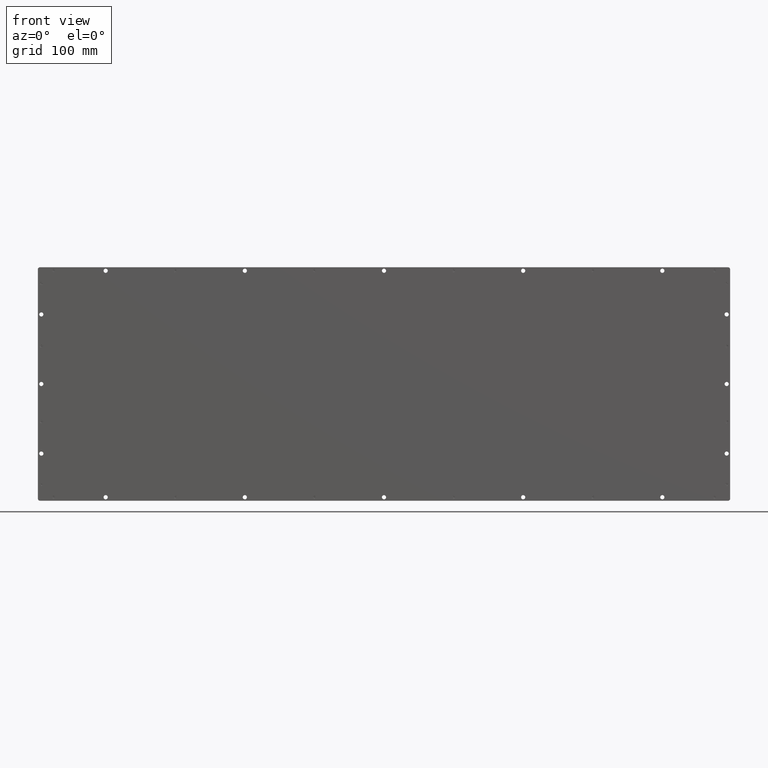
[diagram: clean part render]
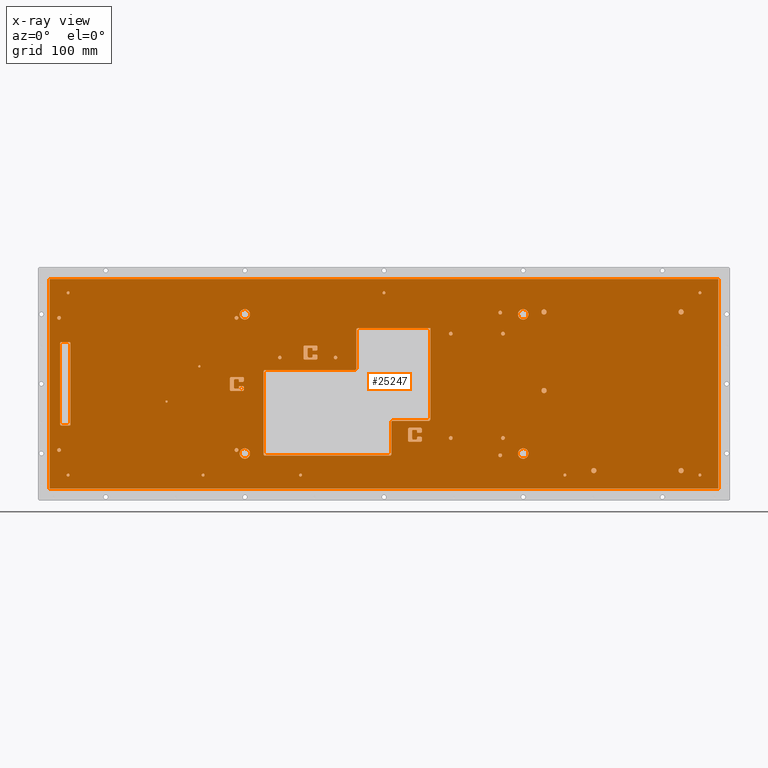
[diagram: x-ray — body ghosted, one internal face saturated and labeled with its STEP entity id]
A machine part, front view, then the same camera in x-ray: the body is ghosted and one INTERNAL B-rep face — a face not visible from any outside direction — is saturated and labeled: STEP entity #25247.
In plain terms, the highlighted planar face has unit normal (0, 1, -0).
Its self-contained STEP definition (entity closure, byte-faithful):
#1954=FACE_BOUND('',#4899,.T.);
#1955=FACE_BOUND('',#4900,.T.);
#1956=FACE_BOUND('',#4901,.T.);
#1957=FACE_BOUND('',#4902,.T.);
#1958=FACE_BOUND('',#4903,.T.);
#1959=FACE_BOUND('',#4904,.T.);
#1960=FACE_BOUND('',#4905,.T.);
#1961=FACE_BOUND('',#4906,.T.);
#1962=FACE_BOUND('',#4907,.T.);
#1963=FACE_BOUND('',#4908,.T.);
#1964=FACE_BOUND('',#4909,.T.);
#1965=FACE_BOUND('',#4910,.T.);
#1966=FACE_BOUND('',#4911,.T.);
#1967=FACE_BOUND('',#4912,.T.);
#1968=FACE_BOUND('',#4913,.T.);
#1969=FACE_BOUND('',#4914,.T.);
#1970=FACE_BOUND('',#4915,.T.);
#1971=FACE_BOUND('',#4916,.T.);
#1972=FACE_BOUND('',#4917,.T.);
#1973=FACE_BOUND('',#4918,.T.);
#1974=FACE_BOUND('',#4919,.T.);
#1975=FACE_BOUND('',#4920,.T.);
#1976=FACE_BOUND('',#4921,.T.);
#1977=FACE_BOUND('',#4922,.T.);
#1978=FACE_BOUND('',#4923,.T.);
#1979=FACE_BOUND('',#4924,.T.);
#1980=FACE_BOUND('',#4925,.T.);
#1981=FACE_BOUND('',#4926,.T.);
#1982=FACE_BOUND('',#4927,.T.);
#1983=FACE_BOUND('',#4928,.T.);
#1984=FACE_BOUND('',#4929,.T.);
#1985=FACE_BOUND('',#4930,.T.);
#1986=FACE_BOUND('',#4931,.T.);
#1987=FACE_BOUND('',#4932,.T.);
#1988=FACE_BOUND('',#4933,.T.);
#1989=FACE_BOUND('',#4934,.T.);
#2431=CIRCLE('',#27029,1.6);
#2432=CIRCLE('',#27030,1.6);
#2433=CIRCLE('',#27031,2.1);
#2434=CIRCLE('',#27032,2.1);
#2435=CIRCLE('',#27033,2.1);
#2436=CIRCLE('',#27034,2.1);
#2437=CIRCLE('',#27035,2.1);
#2438=CIRCLE('',#27036,2.1);
#2439=CIRCLE('',#27037,2.1);
#2440=CIRCLE('',#27038,2.1);
#2441=CIRCLE('',#27039,2.5);
#2442=CIRCLE('',#27040,2.5);
#2443=CIRCLE('',#27041,2.705);
#2444=CIRCLE('',#27042,2.705);
#2445=CIRCLE('',#27043,2.705);
#2446=CIRCLE('',#27044,2.705);
#2447=CIRCLE('',#27045,3.75);
#2448=CIRCLE('',#27046,3.75);
#2449=CIRCLE('',#27047,3.75);
#2450=CIRCLE('',#27048,3.75);
#2451=CIRCLE('',#27049,3.75);
#2452=CIRCLE('',#27050,7.5);
#2453=CIRCLE('',#27051,7.5);
#2454=CIRCLE('',#27052,7.5);
#2455=CIRCLE('',#27053,7.5);
#2456=CIRCLE('',#27054,2.);
#2457=CIRCLE('',#27055,2.);
#2458=CIRCLE('',#27056,2.);
#2459=CIRCLE('',#27057,2.);
#2460=CIRCLE('',#27058,2.);
#2461=CIRCLE('',#27059,2.);
#2462=CIRCLE('',#27060,2.);
#2463=CIRCLE('',#27061,2.);
#2464=CIRCLE('',#27062,2.);
#2465=CIRCLE('',#27063,2.);
#2466=CIRCLE('',#27064,2.);
#2467=CIRCLE('',#27065,2.705);
#2468=CIRCLE('',#27066,2.705);
#2469=CIRCLE('',#27067,2.705);
#2470=CIRCLE('',#27068,2.705);
#2471=CIRCLE('',#27069,2.705);
#2472=CIRCLE('',#27070,2.705);
#2473=CIRCLE('',#27071,1.5);
#2474=CIRCLE('',#27072,2.00000000000002);
#2475=CIRCLE('',#27073,2.00000000000002);
#2476=CIRCLE('',#27074,2.);
#2477=CIRCLE('',#27075,2.00000000000001);
#2478=CIRCLE('',#27076,1.5);
#2479=CIRCLE('',#27077,0.500000000003125);
#2480=CIRCLE('',#27078,1.4999999999968);
#2481=CIRCLE('',#27079,1.4999999999968);
#2482=CIRCLE('',#27080,1.4999999999968);
#2483=CIRCLE('',#27081,1.4999999999968);
#2484=CIRCLE('',#27082,0.500000000003125);
#2485=CIRCLE('',#27083,1.5);
#2486=CIRCLE('',#27084,2.00000000000002);
#2487=CIRCLE('',#27085,2.00000000000002);
#2488=CIRCLE('',#27086,2.);
#2489=CIRCLE('',#27087,2.00000000000001);
#2490=CIRCLE('',#27088,1.5);
#2491=CIRCLE('',#27089,0.500000000003125);
#2492=CIRCLE('',#27090,1.4999999999968);
#2493=CIRCLE('',#27091,1.4999999999968);
#2494=CIRCLE('',#27092,1.4999999999968);
#2495=CIRCLE('',#27093,1.4999999999968);
#2496=CIRCLE('',#27094,0.500000000003125);
#2497=CIRCLE('',#27095,1.5);
#2498=CIRCLE('',#27096,2.00000000000002);
#2499=CIRCLE('',#27097,2.00000000000002);
#2500=CIRCLE('',#27098,2.);
#2501=CIRCLE('',#27099,2.00000000000001);
#2502=CIRCLE('',#27100,1.5);
#2503=CIRCLE('',#27101,0.500000000003125);
#2504=CIRCLE('',#27102,1.4999999999968);
#2505=CIRCLE('',#27103,1.4999999999968);
#2506=CIRCLE('',#27104,1.4999999999968);
#2507=CIRCLE('',#27105,1.4999999999968);
#2508=CIRCLE('',#27106,0.500000000003125);
#3511=FACE_OUTER_BOUND('',#4898,.T.);
#4898=EDGE_LOOP('',(#17240,#17241,#17242,#17243));
#4899=EDGE_LOOP('',(#17244));
#4900=EDGE_LOOP('',(#17245));
#4901=EDGE_LOOP('',(#17246));
#4902=EDGE_LOOP('',(#17247));
#4903=EDGE_LOOP('',(#17248));
#4904=EDGE_LOOP('',(#17249));
#4905=EDGE_LOOP('',(#17250));
#4906=EDGE_LOOP('',(#17251));
#4907=EDGE_LOOP('',(#17252));
#4908=EDGE_LOOP('',(#17253));
#4909=EDGE_LOOP('',(#17254));
#4910=EDGE_LOOP('',(#17255));
#4911=EDGE_LOOP('',(#17256));
#4912=EDGE_LOOP('',(#17257));
#4913=EDGE_LOOP('',(#17258));
#4914=EDGE_LOOP('',(#17259));
#4915=EDGE_LOOP('',(#17260));
#4916=EDGE_LOOP('',(#17261));
#4917=EDGE_LOOP('',(#17262));
#4918=EDGE_LOOP('',(#17263));
#4919=EDGE_LOOP('',(#17264));
#4920=EDGE_LOOP('',(#17265));
#4921=EDGE_LOOP('',(#17266));
#4922=EDGE_LOOP('',(#17267));
#4923=EDGE_LOOP('',(#17268));
#4924=EDGE_LOOP('',(#17269,#17270,#17271,#17272,#17273,#17274,#17275,#17276));
#4925=EDGE_LOOP('',(#17277,#17278,#17279,#17280,#17281,#17282,#17283,#17284,
#17285,#17286,#17287,#17288,#17289,#17290,#17291));
#4926=EDGE_LOOP('',(#17292));
#4927=EDGE_LOOP('',(#17293));
#4928=EDGE_LOOP('',(#17294));
#4929=EDGE_LOOP('',(#17295));
#4930=EDGE_LOOP('',(#17296));
#4931=EDGE_LOOP('',(#17297));
#4932=EDGE_LOOP('',(#17298,#17299,#17300,#17301,#17302,#17303,#17304,#17305,
#17306,#17307,#17308,#17309,#17310,#17311,#17312,#17313,#17314,#17315,#17316,
#17317,#17318,#17319,#17320,#17321));
#4933=EDGE_LOOP('',(#17322,#17323,#17324,#17325,#17326,#17327,#17328,#17329,
#17330,#17331,#17332,#17333,#17334,#17335,#17336,#17337,#17338,#17339,#17340,
#17341,#17342,#17343,#17344,#17345));
#4934=EDGE_LOOP('',(#17346,#17347,#17348,#17349,#17350,#17351,#17352,#17353,
#17354,#17355,#17356,#17357,#17358,#17359,#17360,#17361,#17362,#17363,#17364,
#17365,#17366,#17367,#17368,#17369));
#6762=LINE('',#36642,#8975);
#6763=LINE('',#36644,#8976);
#6764=LINE('',#36646,#8977);
#6765=LINE('',#36647,#8978);
#6766=LINE('',#36702,#8979);
#6767=LINE('',#36706,#8980);
#6768=LINE('',#36710,#8981);
#6769=LINE('',#36713,#8982);
#6770=LINE('',#36716,#8983);
#6771=LINE('',#36720,#8984);
#6772=LINE('',#36724,#8985);
#6773=LINE('',#36728,#8986);
#6774=LINE('',#36732,#8987);
#6775=LINE('',#36736,#8988);
#6776=LINE('',#36740,#8989);
#6777=LINE('',#36742,#8990);
#6778=LINE('',#36758,#8991);
#6779=LINE('',#36762,#8992);
#6780=LINE('',#36766,#8993);
#6781=LINE('',#36770,#8994);
#6782=LINE('',#36774,#8995);
#6783=LINE('',#36778,#8996);
#6784=LINE('',#36782,#8997);
#6785=LINE('',#36786,#8998);
#6786=LINE('',#36790,#8999);
#6787=LINE('',#36794,#9000);
#6788=LINE('',#36798,#9001);
#6789=LINE('',#36802,#9002);
#6790=LINE('',#36806,#9003);
#6791=LINE('',#36810,#9004);
#6792=LINE('',#36814,#9005);
#6793=LINE('',#36818,#9006);
#6794=LINE('',#36822,#9007);
#6795=LINE('',#36826,#9008);
#6796=LINE('',#36830,#9009);
#6797=LINE('',#36834,#9010);
#6798=LINE('',#36838,#9011);
#6799=LINE('',#36842,#9012);
#6800=LINE('',#36846,#9013);
#6801=LINE('',#36850,#9014);
#6802=LINE('',#36854,#9015);
#6803=LINE('',#36858,#9016);
#6804=LINE('',#36862,#9017);
#6805=LINE('',#36866,#9018);
#6806=LINE('',#36870,#9019);
#6807=LINE('',#36874,#9020);
#6808=LINE('',#36878,#9021);
#6809=LINE('',#36882,#9022);
#6810=LINE('',#36886,#9023);
#6811=LINE('',#36890,#9024);
#6812=LINE('',#36894,#9025);
#6813=LINE('',#36898,#9026);
#8975=VECTOR('',#29498,10.);
#8976=VECTOR('',#29499,10.);
#8977=VECTOR('',#29500,10.);
#8978=VECTOR('',#29501,10.);
#8979=VECTOR('',#29554,10.);
#8980=VECTOR('',#29557,10.);
#8981=VECTOR('',#29560,10.);
#8982=VECTOR('',#29563,10.);
#8983=VECTOR('',#29564,10.);
#8984=VECTOR('',#29567,10.);
#8985=VECTOR('',#29570,10.);
#8986=VECTOR('',#29573,10.);
#8987=VECTOR('',#29576,10.);
#8988=VECTOR('',#29579,10.);
#8989=VECTOR('',#29582,10.);
#8990=VECTOR('',#29583,10.);
#8991=VECTOR('',#29598,10.);
#8992=VECTOR('',#29601,10.);
#8993=VECTOR('',#29604,10.);
#8994=VECTOR('',#29607,10.);
#8995=VECTOR('',#29610,10.);
#8996=VECTOR('',#29613,10.);
#8997=VECTOR('',#29616,10.);
#8998=VECTOR('',#29619,10.);
#8999=VECTOR('',#29622,10.);
#9000=VECTOR('',#29625,10.);
#9001=VECTOR('',#29628,10.);
#9002=VECTOR('',#29631,10.);
#9003=VECTOR('',#29634,10.);
#9004=VECTOR('',#29637,10.);
#9005=VECTOR('',#29640,10.);
#9006=VECTOR('',#29643,10.);
#9007=VECTOR('',#29646,10.);
#9008=VECTOR('',#29649,10.);
#9009=VECTOR('',#29652,10.);
#9010=VECTOR('',#29655,10.);
#9011=VECTOR('',#29658,10.);
#9012=VECTOR('',#29661,10.);
#9013=VECTOR('',#29664,10.);
#9014=VECTOR('',#29667,10.);
#9015=VECTOR('',#29670,10.);
#9016=VECTOR('',#29673,10.);
#9017=VECTOR('',#29676,10.);
#9018=VECTOR('',#29679,10.);
#9019=VECTOR('',#29682,10.);
#9020=VECTOR('',#29685,10.);
#9021=VECTOR('',#29688,10.);
#9022=VECTOR('',#29691,10.);
#9023=VECTOR('',#29694,10.);
#9024=VECTOR('',#29697,10.);
#9025=VECTOR('',#29700,10.);
#9026=VECTOR('',#29703,10.);
#11188=VERTEX_POINT('',#36640);
#11189=VERTEX_POINT('',#36641);
#11190=VERTEX_POINT('',#36643);
#11191=VERTEX_POINT('',#36645);
#11192=VERTEX_POINT('',#36648);
#11193=VERTEX_POINT('',#36650);
#11194=VERTEX_POINT('',#36652);
#11195=VERTEX_POINT('',#36654);
#11196=VERTEX_POINT('',#36656);
#11197=VERTEX_POINT('',#36658);
#11198=VERTEX_POINT('',#36660);
#11199=VERTEX_POINT('',#36662);
#11200=VERTEX_POINT('',#36664);
#11201=VERTEX_POINT('',#36666);
#11202=VERTEX_POINT('',#36668);
#11203=VERTEX_POINT('',#36670);
#11204=VERTEX_POINT('',#36672);
#11205=VERTEX_POINT('',#36674);
#11206=VERTEX_POINT('',#36676);
#11207=VERTEX_POINT('',#36678);
#11208=VERTEX_POINT('',#36680);
#11209=VERTEX_POINT('',#36682);
#11210=VERTEX_POINT('',#36684);
#11211=VERTEX_POINT('',#36686);
#11212=VERTEX_POINT('',#36688);
#11213=VERTEX_POINT('',#36690);
#11214=VERTEX_POINT('',#36692);
#11215=VERTEX_POINT('',#36694);
#11216=VERTEX_POINT('',#36696);
#11217=VERTEX_POINT('',#36698);
#11218=VERTEX_POINT('',#36699);
#11219=VERTEX_POINT('',#36701);
#11220=VERTEX_POINT('',#36703);
#11221=VERTEX_POINT('',#36705);
#11222=VERTEX_POINT('',#36707);
#11223=VERTEX_POINT('',#36709);
#11224=VERTEX_POINT('',#36711);
#11225=VERTEX_POINT('',#36714);
#11226=VERTEX_POINT('',#36715);
#11227=VERTEX_POINT('',#36717);
#11228=VERTEX_POINT('',#36719);
#11229=VERTEX_POINT('',#36721);
#11230=VERTEX_POINT('',#36723);
#11231=VERTEX_POINT('',#36725);
#11232=VERTEX_POINT('',#36727);
#11233=VERTEX_POINT('',#36729);
#11234=VERTEX_POINT('',#36731);
#11235=VERTEX_POINT('',#36733);
#11236=VERTEX_POINT('',#36735);
#11237=VERTEX_POINT('',#36737);
#11238=VERTEX_POINT('',#36739);
#11239=VERTEX_POINT('',#36741);
#11240=VERTEX_POINT('',#36744);
#11241=VERTEX_POINT('',#36746);
#11242=VERTEX_POINT('',#36748);
#11243=VERTEX_POINT('',#36750);
#11244=VERTEX_POINT('',#36752);
#11245=VERTEX_POINT('',#36754);
#11246=VERTEX_POINT('',#36756);
#11247=VERTEX_POINT('',#36757);
#11248=VERTEX_POINT('',#36759);
#11249=VERTEX_POINT('',#36761);
#11250=VERTEX_POINT('',#36763);
#11251=VERTEX_POINT('',#36765);
#11252=VERTEX_POINT('',#36767);
#11253=VERTEX_POINT('',#36769);
#11254=VERTEX_POINT('',#36771);
#11255=VERTEX_POINT('',#36773);
#11256=VERTEX_POINT('',#36775);
#11257=VERTEX_POINT('',#36777);
#11258=VERTEX_POINT('',#36779);
#11259=VERTEX_POINT('',#36781);
#11260=VERTEX_POINT('',#36783);
#11261=VERTEX_POINT('',#36785);
#11262=VERTEX_POINT('',#36787);
#11263=VERTEX_POINT('',#36789);
#11264=VERTEX_POINT('',#36791);
#11265=VERTEX_POINT('',#36793);
#11266=VERTEX_POINT('',#36795);
#11267=VERTEX_POINT('',#36797);
#11268=VERTEX_POINT('',#36799);
#11269=VERTEX_POINT('',#36801);
#11270=VERTEX_POINT('',#36804);
#11271=VERTEX_POINT('',#36805);
#11272=VERTEX_POINT('',#36807);
#11273=VERTEX_POINT('',#36809);
#11274=VERTEX_POINT('',#36811);
#11275=VERTEX_POINT('',#36813);
#11276=VERTEX_POINT('',#36815);
#11277=VERTEX_POINT('',#36817);
#11278=VERTEX_POINT('',#36819);
#11279=VERTEX_POINT('',#36821);
#11280=VERTEX_POINT('',#36823);
#11281=VERTEX_POINT('',#36825);
#11282=VERTEX_POINT('',#36827);
#11283=VERTEX_POINT('',#36829);
#11284=VERTEX_POINT('',#36831);
#11285=VERTEX_POINT('',#36833);
#11286=VERTEX_POINT('',#36835);
#11287=VERTEX_POINT('',#36837);
#11288=VERTEX_POINT('',#36839);
#11289=VERTEX_POINT('',#36841);
#11290=VERTEX_POINT('',#36843);
#11291=VERTEX_POINT('',#36845);
#11292=VERTEX_POINT('',#36847);
#11293=VERTEX_POINT('',#36849);
#11294=VERTEX_POINT('',#36852);
#11295=VERTEX_POINT('',#36853);
#11296=VERTEX_POINT('',#36855);
#11297=VERTEX_POINT('',#36857);
#11298=VERTEX_POINT('',#36859);
#11299=VERTEX_POINT('',#36861);
#11300=VERTEX_POINT('',#36863);
#11301=VERTEX_POINT('',#36865);
#11302=VERTEX_POINT('',#36867);
#11303=VERTEX_POINT('',#36869);
#11304=VERTEX_POINT('',#36871);
#11305=VERTEX_POINT('',#36873);
#11306=VERTEX_POINT('',#36875);
#11307=VERTEX_POINT('',#36877);
#11308=VERTEX_POINT('',#36879);
#11309=VERTEX_POINT('',#36881);
#11310=VERTEX_POINT('',#36883);
#11311=VERTEX_POINT('',#36885);
#11312=VERTEX_POINT('',#36887);
#11313=VERTEX_POINT('',#36889);
#11314=VERTEX_POINT('',#36891);
#11315=VERTEX_POINT('',#36893);
#11316=VERTEX_POINT('',#36895);
#11317=VERTEX_POINT('',#36897);
#13609=EDGE_CURVE('',#11188,#11189,#6762,.T.);
#13610=EDGE_CURVE('',#11189,#11190,#6763,.T.);
#13611=EDGE_CURVE('',#11190,#11191,#6764,.T.);
#13612=EDGE_CURVE('',#11191,#11188,#6765,.T.);
#13613=EDGE_CURVE('',#11192,#11192,#2431,.T.);
#13614=EDGE_CURVE('',#11193,#11193,#2432,.T.);
#13615=EDGE_CURVE('',#11194,#11194,#2433,.T.);
#13616=EDGE_CURVE('',#11195,#11195,#2434,.T.);
#13617=EDGE_CURVE('',#11196,#11196,#2435,.T.);
#13618=EDGE_CURVE('',#11197,#11197,#2436,.T.);
#13619=EDGE_CURVE('',#11198,#11198,#2437,.T.);
#13620=EDGE_CURVE('',#11199,#11199,#2438,.T.);
#13621=EDGE_CURVE('',#11200,#11200,#2439,.T.);
#13622=EDGE_CURVE('',#11201,#11201,#2440,.T.);
#13623=EDGE_CURVE('',#11202,#11202,#2441,.T.);
#13624=EDGE_CURVE('',#11203,#11203,#2442,.T.);
#13625=EDGE_CURVE('',#11204,#11204,#2443,.T.);
#13626=EDGE_CURVE('',#11205,#11205,#2444,.T.);
#13627=EDGE_CURVE('',#11206,#11206,#2445,.T.);
#13628=EDGE_CURVE('',#11207,#11207,#2446,.T.);
#13629=EDGE_CURVE('',#11208,#11208,#2447,.T.);
#13630=EDGE_CURVE('',#11209,#11209,#2448,.T.);
#13631=EDGE_CURVE('',#11210,#11210,#2449,.T.);
#13632=EDGE_CURVE('',#11211,#11211,#2450,.T.);
#13633=EDGE_CURVE('',#11212,#11212,#2451,.T.);
#13634=EDGE_CURVE('',#11213,#11213,#2452,.T.);
#13635=EDGE_CURVE('',#11214,#11214,#2453,.T.);
#13636=EDGE_CURVE('',#11215,#11215,#2454,.T.);
#13637=EDGE_CURVE('',#11216,#11216,#2455,.T.);
#13638=EDGE_CURVE('',#11217,#11218,#2456,.T.);
#13639=EDGE_CURVE('',#11218,#11219,#6766,.T.);
#13640=EDGE_CURVE('',#11219,#11220,#2457,.T.);
#13641=EDGE_CURVE('',#11220,#11221,#6767,.T.);
#13642=EDGE_CURVE('',#11221,#11222,#2458,.T.);
#13643=EDGE_CURVE('',#11222,#11223,#6768,.T.);
#13644=EDGE_CURVE('',#11223,#11224,#2459,.T.);
#13645=EDGE_CURVE('',#11224,#11217,#6769,.T.);
#13646=EDGE_CURVE('',#11225,#11226,#6770,.T.);
#13647=EDGE_CURVE('',#11226,#11227,#2460,.T.);
#13648=EDGE_CURVE('',#11227,#11228,#6771,.T.);
#13649=EDGE_CURVE('',#11228,#11229,#2461,.T.);
#13650=EDGE_CURVE('',#11229,#11230,#6772,.T.);
#13651=EDGE_CURVE('',#11230,#11231,#2462,.T.);
#13652=EDGE_CURVE('',#11231,#11232,#6773,.T.);
#13653=EDGE_CURVE('',#11232,#11233,#2463,.T.);
#13654=EDGE_CURVE('',#11233,#11234,#6774,.T.);
#13655=EDGE_CURVE('',#11234,#11235,#2464,.T.);
#13656=EDGE_CURVE('',#11235,#11236,#6775,.T.);
#13657=EDGE_CURVE('',#11236,#11237,#2465,.T.);
#13658=EDGE_CURVE('',#11237,#11238,#6776,.T.);
#13659=EDGE_CURVE('',#11238,#11239,#6777,.T.);
#13660=EDGE_CURVE('',#11239,#11225,#2466,.T.);
#13661=EDGE_CURVE('',#11240,#11240,#2467,.T.);
#13662=EDGE_CURVE('',#11241,#11241,#2468,.T.);
#13663=EDGE_CURVE('',#11242,#11242,#2469,.T.);
#13664=EDGE_CURVE('',#11243,#11243,#2470,.T.);
#13665=EDGE_CURVE('',#11244,#11244,#2471,.T.);
#13666=EDGE_CURVE('',#11245,#11245,#2472,.T.);
#13667=EDGE_CURVE('',#11246,#11247,#6778,.T.);
#13668=EDGE_CURVE('',#11247,#11248,#2473,.T.);
#13669=EDGE_CURVE('',#11248,#11249,#6779,.T.);
#13670=EDGE_CURVE('',#11249,#11250,#2474,.T.);
#13671=EDGE_CURVE('',#11250,#11251,#6780,.T.);
#13672=EDGE_CURVE('',#11251,#11252,#2475,.T.);
#13673=EDGE_CURVE('',#11252,#11253,#6781,.T.);
#13674=EDGE_CURVE('',#11253,#11254,#2476,.T.);
#13675=EDGE_CURVE('',#11254,#11255,#6782,.T.);
#13676=EDGE_CURVE('',#11255,#11256,#2477,.T.);
#13677=EDGE_CURVE('',#11256,#11257,#6783,.T.);
#13678=EDGE_CURVE('',#11257,#11258,#2478,.T.);
#13679=EDGE_CURVE('',#11258,#11259,#6784,.T.);
#13680=EDGE_CURVE('',#11259,#11260,#2479,.T.);
#13681=EDGE_CURVE('',#11260,#11261,#6785,.T.);
#13682=EDGE_CURVE('',#11261,#11262,#2480,.T.);
#13683=EDGE_CURVE('',#11262,#11263,#6786,.T.);
#13684=EDGE_CURVE('',#11263,#11264,#2481,.T.);
#13685=EDGE_CURVE('',#11264,#11265,#6787,.T.);
#13686=EDGE_CURVE('',#11265,#11266,#2482,.T.);
#13687=EDGE_CURVE('',#11266,#11267,#6788,.T.);
#13688=EDGE_CURVE('',#11267,#11268,#2483,.T.);
#13689=EDGE_CURVE('',#11268,#11269,#6789,.T.);
#13690=EDGE_CURVE('',#11269,#11246,#2484,.T.);
#13691=EDGE_CURVE('',#11270,#11271,#6790,.T.);
#13692=EDGE_CURVE('',#11271,#11272,#2485,.T.);
#13693=EDGE_CURVE('',#11272,#11273,#6791,.T.);
#13694=EDGE_CURVE('',#11273,#11274,#2486,.T.);
#13695=EDGE_CURVE('',#11274,#11275,#6792,.T.);
#13696=EDGE_CURVE('',#11275,#11276,#2487,.T.);
#13697=EDGE_CURVE('',#11276,#11277,#6793,.T.);
#13698=EDGE_CURVE('',#11277,#11278,#2488,.T.);
#13699=EDGE_CURVE('',#11278,#11279,#6794,.T.);
#13700=EDGE_CURVE('',#11279,#11280,#2489,.T.);
#13701=EDGE_CURVE('',#11280,#11281,#6795,.T.);
#13702=EDGE_CURVE('',#11281,#11282,#2490,.T.);
#13703=EDGE_CURVE('',#11282,#11283,#6796,.T.);
#13704=EDGE_CURVE('',#11283,#11284,#2491,.T.);
#13705=EDGE_CURVE('',#11284,#11285,#6797,.T.);
#13706=EDGE_CURVE('',#11285,#11286,#2492,.T.);
#13707=EDGE_CURVE('',#11286,#11287,#6798,.T.);
#13708=EDGE_CURVE('',#11287,#11288,#2493,.T.);
#13709=EDGE_CURVE('',#11288,#11289,#6799,.T.);
#13710=EDGE_CURVE('',#11289,#11290,#2494,.T.);
#13711=EDGE_CURVE('',#11290,#11291,#6800,.T.);
#13712=EDGE_CURVE('',#11291,#11292,#2495,.T.);
#13713=EDGE_CURVE('',#11292,#11293,#6801,.T.);
#13714=EDGE_CURVE('',#11293,#11270,#2496,.T.);
#13715=EDGE_CURVE('',#11294,#11295,#6802,.T.);
#13716=EDGE_CURVE('',#11295,#11296,#2497,.T.);
#13717=EDGE_CURVE('',#11296,#11297,#6803,.T.);
#13718=EDGE_CURVE('',#11297,#11298,#2498,.T.);
#13719=EDGE_CURVE('',#11298,#11299,#6804,.T.);
#13720=EDGE_CURVE('',#11299,#11300,#2499,.T.);
#13721=EDGE_CURVE('',#11300,#11301,#6805,.T.);
#13722=EDGE_CURVE('',#11301,#11302,#2500,.T.);
#13723=EDGE_CURVE('',#11302,#11303,#6806,.T.);
#13724=EDGE_CURVE('',#11303,#11304,#2501,.T.);
#13725=EDGE_CURVE('',#11304,#11305,#6807,.T.);
#13726=EDGE_CURVE('',#11305,#11306,#2502,.T.);
#13727=EDGE_CURVE('',#11306,#11307,#6808,.T.);
#13728=EDGE_CURVE('',#11307,#11308,#2503,.T.);
#13729=EDGE_CURVE('',#11308,#11309,#6809,.T.);
#13730=EDGE_CURVE('',#11309,#11310,#2504,.T.);
#13731=EDGE_CURVE('',#11310,#11311,#6810,.T.);
#13732=EDGE_CURVE('',#11311,#11312,#2505,.T.);
#13733=EDGE_CURVE('',#11312,#11313,#6811,.T.);
#13734=EDGE_CURVE('',#11313,#11314,#2506,.T.);
#13735=EDGE_CURVE('',#11314,#11315,#6812,.T.);
#13736=EDGE_CURVE('',#11315,#11316,#2507,.T.);
#13737=EDGE_CURVE('',#11316,#11317,#6813,.T.);
#13738=EDGE_CURVE('',#11317,#11294,#2508,.T.);
#17240=ORIENTED_EDGE('',*,*,#13609,.T.);
#17241=ORIENTED_EDGE('',*,*,#13610,.T.);
#17242=ORIENTED_EDGE('',*,*,#13611,.T.);
#17243=ORIENTED_EDGE('',*,*,#13612,.T.);
#17244=ORIENTED_EDGE('',*,*,#13613,.T.);
#17245=ORIENTED_EDGE('',*,*,#13614,.T.);
#17246=ORIENTED_EDGE('',*,*,#13615,.T.);
#17247=ORIENTED_EDGE('',*,*,#13616,.T.);
#17248=ORIENTED_EDGE('',*,*,#13617,.T.);
#17249=ORIENTED_EDGE('',*,*,#13618,.T.);
#17250=ORIENTED_EDGE('',*,*,#13619,.T.);
#17251=ORIENTED_EDGE('',*,*,#13620,.T.);
#17252=ORIENTED_EDGE('',*,*,#13621,.T.);
#17253=ORIENTED_EDGE('',*,*,#13622,.T.);
#17254=ORIENTED_EDGE('',*,*,#13623,.T.);
#17255=ORIENTED_EDGE('',*,*,#13624,.T.);
#17256=ORIENTED_EDGE('',*,*,#13625,.T.);
#17257=ORIENTED_EDGE('',*,*,#13626,.T.);
#17258=ORIENTED_EDGE('',*,*,#13627,.T.);
#17259=ORIENTED_EDGE('',*,*,#13628,.T.);
#17260=ORIENTED_EDGE('',*,*,#13629,.T.);
#17261=ORIENTED_EDGE('',*,*,#13630,.T.);
#17262=ORIENTED_EDGE('',*,*,#13631,.T.);
#17263=ORIENTED_EDGE('',*,*,#13632,.T.);
#17264=ORIENTED_EDGE('',*,*,#13633,.T.);
#17265=ORIENTED_EDGE('',*,*,#13634,.T.);
#17266=ORIENTED_EDGE('',*,*,#13635,.T.);
#17267=ORIENTED_EDGE('',*,*,#13636,.T.);
#17268=ORIENTED_EDGE('',*,*,#13637,.T.);
#17269=ORIENTED_EDGE('',*,*,#13638,.T.);
#17270=ORIENTED_EDGE('',*,*,#13639,.T.);
#17271=ORIENTED_EDGE('',*,*,#13640,.T.);
#17272=ORIENTED_EDGE('',*,*,#13641,.T.);
#17273=ORIENTED_EDGE('',*,*,#13642,.T.);
#17274=ORIENTED_EDGE('',*,*,#13643,.T.);
#17275=ORIENTED_EDGE('',*,*,#13644,.T.);
#17276=ORIENTED_EDGE('',*,*,#13645,.T.);
#17277=ORIENTED_EDGE('',*,*,#13646,.T.);
#17278=ORIENTED_EDGE('',*,*,#13647,.T.);
#17279=ORIENTED_EDGE('',*,*,#13648,.T.);
#17280=ORIENTED_EDGE('',*,*,#13649,.T.);
#17281=ORIENTED_EDGE('',*,*,#13650,.T.);
#17282=ORIENTED_EDGE('',*,*,#13651,.T.);
#17283=ORIENTED_EDGE('',*,*,#13652,.T.);
#17284=ORIENTED_EDGE('',*,*,#13653,.T.);
#17285=ORIENTED_EDGE('',*,*,#13654,.T.);
#17286=ORIENTED_EDGE('',*,*,#13655,.T.);
#17287=ORIENTED_EDGE('',*,*,#13656,.T.);
#17288=ORIENTED_EDGE('',*,*,#13657,.T.);
#17289=ORIENTED_EDGE('',*,*,#13658,.T.);
#17290=ORIENTED_EDGE('',*,*,#13659,.T.);
#17291=ORIENTED_EDGE('',*,*,#13660,.T.);
#17292=ORIENTED_EDGE('',*,*,#13661,.T.);
#17293=ORIENTED_EDGE('',*,*,#13662,.T.);
#17294=ORIENTED_EDGE('',*,*,#13663,.T.);
#17295=ORIENTED_EDGE('',*,*,#13664,.T.);
#17296=ORIENTED_EDGE('',*,*,#13665,.T.);
#17297=ORIENTED_EDGE('',*,*,#13666,.T.);
#17298=ORIENTED_EDGE('',*,*,#13667,.T.);
#17299=ORIENTED_EDGE('',*,*,#13668,.T.);
#17300=ORIENTED_EDGE('',*,*,#13669,.T.);
#17301=ORIENTED_EDGE('',*,*,#13670,.T.);
#17302=ORIENTED_EDGE('',*,*,#13671,.T.);
#17303=ORIENTED_EDGE('',*,*,#13672,.T.);
#17304=ORIENTED_EDGE('',*,*,#13673,.T.);
#17305=ORIENTED_EDGE('',*,*,#13674,.T.);
#17306=ORIENTED_EDGE('',*,*,#13675,.T.);
#17307=ORIENTED_EDGE('',*,*,#13676,.T.);
#17308=ORIENTED_EDGE('',*,*,#13677,.T.);
#17309=ORIENTED_EDGE('',*,*,#13678,.T.);
#17310=ORIENTED_EDGE('',*,*,#13679,.T.);
#17311=ORIENTED_EDGE('',*,*,#13680,.T.);
#17312=ORIENTED_EDGE('',*,*,#13681,.T.);
#17313=ORIENTED_EDGE('',*,*,#13682,.T.);
#17314=ORIENTED_EDGE('',*,*,#13683,.T.);
#17315=ORIENTED_EDGE('',*,*,#13684,.T.);
#17316=ORIENTED_EDGE('',*,*,#13685,.T.);
#17317=ORIENTED_EDGE('',*,*,#13686,.T.);
#17318=ORIENTED_EDGE('',*,*,#13687,.T.);
#17319=ORIENTED_EDGE('',*,*,#13688,.T.);
#17320=ORIENTED_EDGE('',*,*,#13689,.T.);
#17321=ORIENTED_EDGE('',*,*,#13690,.T.);
#17322=ORIENTED_EDGE('',*,*,#13691,.T.);
#17323=ORIENTED_EDGE('',*,*,#13692,.T.);
#17324=ORIENTED_EDGE('',*,*,#13693,.T.);
#17325=ORIENTED_EDGE('',*,*,#13694,.T.);
#17326=ORIENTED_EDGE('',*,*,#13695,.T.);
#17327=ORIENTED_EDGE('',*,*,#13696,.T.);
#17328=ORIENTED_EDGE('',*,*,#13697,.T.);
#17329=ORIENTED_EDGE('',*,*,#13698,.T.);
#17330=ORIENTED_EDGE('',*,*,#13699,.T.);
#17331=ORIENTED_EDGE('',*,*,#13700,.T.);
#17332=ORIENTED_EDGE('',*,*,#13701,.T.);
#17333=ORIENTED_EDGE('',*,*,#13702,.T.);
#17334=ORIENTED_EDGE('',*,*,#13703,.T.);
#17335=ORIENTED_EDGE('',*,*,#13704,.T.);
#17336=ORIENTED_EDGE('',*,*,#13705,.T.);
#17337=ORIENTED_EDGE('',*,*,#13706,.T.);
#17338=ORIENTED_EDGE('',*,*,#13707,.T.);
#17339=ORIENTED_EDGE('',*,*,#13708,.T.);
#17340=ORIENTED_EDGE('',*,*,#13709,.T.);
#17341=ORIENTED_EDGE('',*,*,#13710,.T.);
#17342=ORIENTED_EDGE('',*,*,#13711,.T.);
#17343=ORIENTED_EDGE('',*,*,#13712,.T.);
#17344=ORIENTED_EDGE('',*,*,#13713,.T.);
#17345=ORIENTED_EDGE('',*,*,#13714,.T.);
#17346=ORIENTED_EDGE('',*,*,#13715,.T.);
#17347=ORIENTED_EDGE('',*,*,#13716,.T.);
#17348=ORIENTED_EDGE('',*,*,#13717,.T.);
#17349=ORIENTED_EDGE('',*,*,#13718,.T.);
#17350=ORIENTED_EDGE('',*,*,#13719,.T.);
#17351=ORIENTED_EDGE('',*,*,#13720,.T.);
#17352=ORIENTED_EDGE('',*,*,#13721,.T.);
#17353=ORIENTED_EDGE('',*,*,#13722,.T.);
#17354=ORIENTED_EDGE('',*,*,#13723,.T.);
#17355=ORIENTED_EDGE('',*,*,#13724,.T.);
#17356=ORIENTED_EDGE('',*,*,#13725,.T.);
#17357=ORIENTED_EDGE('',*,*,#13726,.T.);
#17358=ORIENTED_EDGE('',*,*,#13727,.T.);
#17359=ORIENTED_EDGE('',*,*,#13728,.T.);
#17360=ORIENTED_EDGE('',*,*,#13729,.T.);
#17361=ORIENTED_EDGE('',*,*,#13730,.T.);
#17362=ORIENTED_EDGE('',*,*,#13731,.T.);
#17363=ORIENTED_EDGE('',*,*,#13732,.T.);
#17364=ORIENTED_EDGE('',*,*,#13733,.T.);
#17365=ORIENTED_EDGE('',*,*,#13734,.T.);
#17366=ORIENTED_EDGE('',*,*,#13735,.T.);
#17367=ORIENTED_EDGE('',*,*,#13736,.T.);
#17368=ORIENTED_EDGE('',*,*,#13737,.T.);
#17369=ORIENTED_EDGE('',*,*,#13738,.T.);
#24502=PLANE('',#27028);
#25247=ADVANCED_FACE('',(#3511,#1954,#1955,#1956,#1957,#1958,#1959,#1960,
#1961,#1962,#1963,#1964,#1965,#1966,#1967,#1968,#1969,#1970,#1971,#1972,
#1973,#1974,#1975,#1976,#1977,#1978,#1979,#1980,#1981,#1982,#1983,#1984,
#1985,#1986,#1987,#1988,#1989),#24502,.F.);
#27028=AXIS2_PLACEMENT_3D('',#36639,#29496,#29497);
#27029=AXIS2_PLACEMENT_3D('',#36649,#29502,#29503);
#27030=AXIS2_PLACEMENT_3D('',#36651,#29504,#29505);
#27031=AXIS2_PLACEMENT_3D('',#36653,#29506,#29507);
#27032=AXIS2_PLACEMENT_3D('',#36655,#29508,#29509);
#27033=AXIS2_PLACEMENT_3D('',#36657,#29510,#29511);
#27034=AXIS2_PLACEMENT_3D('',#36659,#29512,#29513);
#27035=AXIS2_PLACEMENT_3D('',#36661,#29514,#29515);
#27036=AXIS2_PLACEMENT_3D('',#36663,#29516,#29517);
#27037=AXIS2_PLACEMENT_3D('',#36665,#29518,#29519);
#27038=AXIS2_PLACEMENT_3D('',#36667,#29520,#29521);
#27039=AXIS2_PLACEMENT_3D('',#36669,#29522,#29523);
#27040=AXIS2_PLACEMENT_3D('',#36671,#29524,#29525);
#27041=AXIS2_PLACEMENT_3D('',#36673,#29526,#29527);
#27042=AXIS2_PLACEMENT_3D('',#36675,#29528,#29529);
#27043=AXIS2_PLACEMENT_3D('',#36677,#29530,#29531);
#27044=AXIS2_PLACEMENT_3D('',#36679,#29532,#29533);
#27045=AXIS2_PLACEMENT_3D('',#36681,#29534,#29535);
#27046=AXIS2_PLACEMENT_3D('',#36683,#29536,#29537);
#27047=AXIS2_PLACEMENT_3D('',#36685,#29538,#29539);
#27048=AXIS2_PLACEMENT_3D('',#36687,#29540,#29541);
#27049=AXIS2_PLACEMENT_3D('',#36689,#29542,#29543);
#27050=AXIS2_PLACEMENT_3D('',#36691,#29544,#29545);
#27051=AXIS2_PLACEMENT_3D('',#36693,#29546,#29547);
#27052=AXIS2_PLACEMENT_3D('',#36695,#29548,#29549);
#27053=AXIS2_PLACEMENT_3D('',#36697,#29550,#29551);
#27054=AXIS2_PLACEMENT_3D('',#36700,#29552,#29553);
#27055=AXIS2_PLACEMENT_3D('',#36704,#29555,#29556);
#27056=AXIS2_PLACEMENT_3D('',#36708,#29558,#29559);
#27057=AXIS2_PLACEMENT_3D('',#36712,#29561,#29562);
#27058=AXIS2_PLACEMENT_3D('',#36718,#29565,#29566);
#27059=AXIS2_PLACEMENT_3D('',#36722,#29568,#29569);
#27060=AXIS2_PLACEMENT_3D('',#36726,#29571,#29572);
#27061=AXIS2_PLACEMENT_3D('',#36730,#29574,#29575);
#27062=AXIS2_PLACEMENT_3D('',#36734,#29577,#29578);
#27063=AXIS2_PLACEMENT_3D('',#36738,#29580,#29581);
#27064=AXIS2_PLACEMENT_3D('',#36743,#29584,#29585);
#27065=AXIS2_PLACEMENT_3D('',#36745,#29586,#29587);
#27066=AXIS2_PLACEMENT_3D('',#36747,#29588,#29589);
#27067=AXIS2_PLACEMENT_3D('',#36749,#29590,#29591);
#27068=AXIS2_PLACEMENT_3D('',#36751,#29592,#29593);
#27069=AXIS2_PLACEMENT_3D('',#36753,#29594,#29595);
#27070=AXIS2_PLACEMENT_3D('',#36755,#29596,#29597);
#27071=AXIS2_PLACEMENT_3D('',#36760,#29599,#29600);
#27072=AXIS2_PLACEMENT_3D('',#36764,#29602,#29603);
#27073=AXIS2_PLACEMENT_3D('',#36768,#29605,#29606);
#27074=AXIS2_PLACEMENT_3D('',#36772,#29608,#29609);
#27075=AXIS2_PLACEMENT_3D('',#36776,#29611,#29612);
#27076=AXIS2_PLACEMENT_3D('',#36780,#29614,#29615);
#27077=AXIS2_PLACEMENT_3D('',#36784,#29617,#29618);
#27078=AXIS2_PLACEMENT_3D('',#36788,#29620,#29621);
#27079=AXIS2_PLACEMENT_3D('',#36792,#29623,#29624);
#27080=AXIS2_PLACEMENT_3D('',#36796,#29626,#29627);
#27081=AXIS2_PLACEMENT_3D('',#36800,#29629,#29630);
#27082=AXIS2_PLACEMENT_3D('',#36803,#29632,#29633);
#27083=AXIS2_PLACEMENT_3D('',#36808,#29635,#29636);
#27084=AXIS2_PLACEMENT_3D('',#36812,#29638,#29639);
#27085=AXIS2_PLACEMENT_3D('',#36816,#29641,#29642);
#27086=AXIS2_PLACEMENT_3D('',#36820,#29644,#29645);
#27087=AXIS2_PLACEMENT_3D('',#36824,#29647,#29648);
#27088=AXIS2_PLACEMENT_3D('',#36828,#29650,#29651);
#27089=AXIS2_PLACEMENT_3D('',#36832,#29653,#29654);
#27090=AXIS2_PLACEMENT_3D('',#36836,#29656,#29657);
#27091=AXIS2_PLACEMENT_3D('',#36840,#29659,#29660);
#27092=AXIS2_PLACEMENT_3D('',#36844,#29662,#29663);
#27093=AXIS2_PLACEMENT_3D('',#36848,#29665,#29666);
#27094=AXIS2_PLACEMENT_3D('',#36851,#29668,#29669);
#27095=AXIS2_PLACEMENT_3D('',#36856,#29671,#29672);
#27096=AXIS2_PLACEMENT_3D('',#36860,#29674,#29675);
#27097=AXIS2_PLACEMENT_3D('',#36864,#29677,#29678);
#27098=AXIS2_PLACEMENT_3D('',#36868,#29680,#29681);
#27099=AXIS2_PLACEMENT_3D('',#36872,#29683,#29684);
#27100=AXIS2_PLACEMENT_3D('',#36876,#29686,#29687);
#27101=AXIS2_PLACEMENT_3D('',#36880,#29689,#29690);
#27102=AXIS2_PLACEMENT_3D('',#36884,#29692,#29693);
#27103=AXIS2_PLACEMENT_3D('',#36888,#29695,#29696);
#27104=AXIS2_PLACEMENT_3D('',#36892,#29698,#29699);
#27105=AXIS2_PLACEMENT_3D('',#36896,#29701,#29702);
#27106=AXIS2_PLACEMENT_3D('',#36899,#29704,#29705);
#29496=DIRECTION('center_axis',(0.,0.,1.));
#29497=DIRECTION('ref_axis',(1.,0.,0.));
#29498=DIRECTION('',(0.,1.,0.));
#29499=DIRECTION('',(1.,2.57699118705997E-16,0.));
#29500=DIRECTION('',(0.,-1.,0.));
#29501=DIRECTION('',(-1.,-1.10442479445427E-16,0.));
#29502=DIRECTION('center_axis',(0.,0.,1.));
#29503=DIRECTION('ref_axis',(-1.,0.,0.));
#29504=DIRECTION('center_axis',(0.,0.,1.));
#29505=DIRECTION('ref_axis',(-1.,0.,0.));
#29506=DIRECTION('center_axis',(0.,0.,1.));
#29507=DIRECTION('ref_axis',(-1.,0.,0.));
#29508=DIRECTION('center_axis',(0.,0.,1.));
#29509=DIRECTION('ref_axis',(-1.,0.,0.));
#29510=DIRECTION('center_axis',(0.,0.,1.));
#29511=DIRECTION('ref_axis',(-1.,0.,0.));
#29512=DIRECTION('center_axis',(0.,0.,1.));
#29513=DIRECTION('ref_axis',(-1.,0.,0.));
#29514=DIRECTION('center_axis',(0.,0.,1.));
#29515=DIRECTION('ref_axis',(-1.,0.,0.));
#29516=DIRECTION('center_axis',(0.,0.,1.));
#29517=DIRECTION('ref_axis',(-1.,0.,0.));
#29518=DIRECTION('center_axis',(0.,0.,1.));
#29519=DIRECTION('ref_axis',(-1.,0.,0.));
#29520=DIRECTION('center_axis',(0.,0.,1.));
#29521=DIRECTION('ref_axis',(-1.,0.,0.));
#29522=DIRECTION('center_axis',(0.,0.,1.));
#29523=DIRECTION('ref_axis',(-1.,0.,0.));
#29524=DIRECTION('center_axis',(0.,0.,1.));
#29525=DIRECTION('ref_axis',(-1.,0.,0.));
#29526=DIRECTION('center_axis',(0.,0.,1.));
#29527=DIRECTION('ref_axis',(-1.,0.,0.));
#29528=DIRECTION('center_axis',(0.,0.,1.));
#29529=DIRECTION('ref_axis',(-1.,0.,0.));
#29530=DIRECTION('center_axis',(0.,0.,1.));
#29531=DIRECTION('ref_axis',(-1.,0.,0.));
#29532=DIRECTION('center_axis',(0.,0.,1.));
#29533=DIRECTION('ref_axis',(-1.,0.,0.));
#29534=DIRECTION('center_axis',(0.,0.,1.));
#29535=DIRECTION('ref_axis',(-1.,0.,0.));
#29536=DIRECTION('center_axis',(0.,0.,1.));
#29537=DIRECTION('ref_axis',(-1.,0.,0.));
#29538=DIRECTION('center_axis',(0.,0.,1.));
#29539=DIRECTION('ref_axis',(-1.,0.,0.));
#29540=DIRECTION('center_axis',(0.,0.,1.));
#29541=DIRECTION('ref_axis',(-1.,0.,0.));
#29542=DIRECTION('center_axis',(0.,0.,1.));
#29543=DIRECTION('ref_axis',(-1.,0.,0.));
#29544=DIRECTION('center_axis',(0.,0.,1.));
#29545=DIRECTION('ref_axis',(-1.,0.,0.));
#29546=DIRECTION('center_axis',(0.,0.,1.));
#29547=DIRECTION('ref_axis',(-1.,0.,0.));
#29548=DIRECTION('center_axis',(0.,0.,1.));
#29549=DIRECTION('ref_axis',(-1.,0.,0.));
#29550=DIRECTION('center_axis',(0.,0.,1.));
#29551=DIRECTION('ref_axis',(-1.,0.,0.));
#29552=DIRECTION('center_axis',(0.,0.,1.));
#29553=DIRECTION('ref_axis',(1.,0.,0.));
#29554=DIRECTION('',(1.,0.,0.));
#29555=DIRECTION('center_axis',(0.,0.,1.));
#29556=DIRECTION('ref_axis',(0.,1.,0.));
#29557=DIRECTION('',(0.,1.,0.));
#29558=DIRECTION('center_axis',(0.,0.,1.));
#29559=DIRECTION('ref_axis',(-1.,0.,0.));
#29560=DIRECTION('',(-1.,0.,0.));
#29561=DIRECTION('center_axis',(0.,0.,1.));
#29562=DIRECTION('ref_axis',(0.,-1.,0.));
#29563=DIRECTION('',(0.,-1.,0.));
#29564=DIRECTION('',(1.,0.,0.));
#29565=DIRECTION('center_axis',(0.,0.,-1.));
#29566=DIRECTION('ref_axis',(-1.,0.,0.));
#29567=DIRECTION('',(0.,-1.,0.));
#29568=DIRECTION('center_axis',(0.,0.,1.));
#29569=DIRECTION('ref_axis',(-1.,0.,0.));
#29570=DIRECTION('',(1.,0.,0.));
#29571=DIRECTION('center_axis',(0.,0.,1.));
#29572=DIRECTION('ref_axis',(0.,-1.,0.));
#29573=DIRECTION('',(0.,1.,0.));
#29574=DIRECTION('center_axis',(0.,0.,1.));
#29575=DIRECTION('ref_axis',(1.,0.,0.));
#29576=DIRECTION('',(-1.,0.,0.));
#29577=DIRECTION('center_axis',(0.,0.,-1.));
#29578=DIRECTION('ref_axis',(1.,0.,0.));
#29579=DIRECTION('',(0.,1.,0.));
#29580=DIRECTION('center_axis',(0.,0.,1.));
#29581=DIRECTION('ref_axis',(1.,0.,0.));
#29582=DIRECTION('',(-1.,0.,0.));
#29583=DIRECTION('',(0.,-1.,0.));
#29584=DIRECTION('center_axis',(0.,0.,1.));
#29585=DIRECTION('ref_axis',(-1.,0.,0.));
#29586=DIRECTION('center_axis',(0.,0.,1.));
#29587=DIRECTION('ref_axis',(1.,0.,0.));
#29588=DIRECTION('center_axis',(0.,0.,1.));
#29589=DIRECTION('ref_axis',(1.,0.,0.));
#29590=DIRECTION('center_axis',(0.,0.,1.));
#29591=DIRECTION('ref_axis',(1.,0.,0.));
#29592=DIRECTION('center_axis',(0.,0.,1.));
#29593=DIRECTION('ref_axis',(1.,0.,0.));
#29594=DIRECTION('center_axis',(0.,0.,1.));
#29595=DIRECTION('ref_axis',(1.,0.,0.));
#29596=DIRECTION('center_axis',(0.,0.,1.));
#29597=DIRECTION('ref_axis',(1.,0.,0.));
#29598=DIRECTION('',(-1.,-2.22044604925031E-16,0.));
#29599=DIRECTION('center_axis',(0.,0.,1.));
#29600=DIRECTION('ref_axis',(-2.22044604925031E-16,1.,0.));
#29601=DIRECTION('',(2.22044604925031E-16,-1.,0.));
#29602=DIRECTION('center_axis',(0.,0.,1.));
#29603=DIRECTION('ref_axis',(-1.,-2.22044604925031E-16,0.));
#29604=DIRECTION('',(1.,-1.94289029309402E-16,0.));
#29605=DIRECTION('center_axis',(0.,0.,1.));
#29606=DIRECTION('ref_axis',(-5.55111512312575E-17,-1.,0.));
#29607=DIRECTION('',(-2.22044604925031E-16,1.,0.));
#29608=DIRECTION('center_axis',(0.,0.,1.));
#29609=DIRECTION('ref_axis',(1.,7.7715611723761E-16,0.));
#29610=DIRECTION('',(-1.,-6.38378239159465E-16,0.));
#29611=DIRECTION('center_axis',(0.,0.,1.));
#29612=DIRECTION('ref_axis',(-2.22044604925031E-16,1.,0.));
#29613=DIRECTION('',(2.22044604925031E-16,-1.,0.));
#29614=DIRECTION('center_axis',(0.,0.,1.));
#29615=DIRECTION('ref_axis',(-1.,1.48029736616688E-16,0.));
#29616=DIRECTION('',(1.,2.22044604925031E-16,0.));
#29617=DIRECTION('center_axis',(0.,0.,1.));
#29618=DIRECTION('ref_axis',(2.22044604925031E-16,-1.,0.));
#29619=DIRECTION('',(-1.33226759655851E-15,1.,0.));
#29620=DIRECTION('center_axis',(0.,0.,-1.));
#29621=DIRECTION('ref_axis',(2.22044604925031E-16,-1.,0.));
#29622=DIRECTION('',(1.,-5.55111512308068E-17,0.));
#29623=DIRECTION('center_axis',(0.,0.,-1.));
#29624=DIRECTION('ref_axis',(-1.,-9.6219328801005E-16,0.));
#29625=DIRECTION('',(2.22044604925031E-16,-1.,0.));
#29626=DIRECTION('center_axis',(0.,0.,-1.));
#29627=DIRECTION('ref_axis',(-2.22044604925031E-16,1.,0.));
#29628=DIRECTION('',(-1.,-4.99600361080869E-16,0.));
#29629=DIRECTION('center_axis',(0.,0.,-1.));
#29630=DIRECTION('ref_axis',(1.,2.22044604925031E-16,0.));
#29631=DIRECTION('',(8.8817838670845E-16,1.,0.));
#29632=DIRECTION('center_axis',(0.,0.,1.));
#29633=DIRECTION('ref_axis',(1.,2.22044604925031E-16,0.));
#29634=DIRECTION('',(-1.,-2.22044604925031E-16,0.));
#29635=DIRECTION('center_axis',(0.,0.,1.));
#29636=DIRECTION('ref_axis',(-2.22044604925031E-16,1.,0.));
#29637=DIRECTION('',(2.22044604925031E-16,-1.,0.));
#29638=DIRECTION('center_axis',(0.,0.,1.));
#29639=DIRECTION('ref_axis',(-1.,-2.22044604925031E-16,0.));
#29640=DIRECTION('',(1.,-1.94289029309402E-16,0.));
#29641=DIRECTION('center_axis',(0.,0.,1.));
#29642=DIRECTION('ref_axis',(-5.55111512312575E-17,-1.,0.));
#29643=DIRECTION('',(-2.22044604925031E-16,1.,0.));
#29644=DIRECTION('center_axis',(0.,0.,1.));
#29645=DIRECTION('ref_axis',(1.,7.7715611723761E-16,0.));
#29646=DIRECTION('',(-1.,-6.38378239159465E-16,0.));
#29647=DIRECTION('center_axis',(0.,0.,1.));
#29648=DIRECTION('ref_axis',(-2.22044604925031E-16,1.,0.));
#29649=DIRECTION('',(2.22044604925031E-16,-1.,0.));
#29650=DIRECTION('center_axis',(0.,0.,1.));
#29651=DIRECTION('ref_axis',(-1.,1.48029736616688E-16,0.));
#29652=DIRECTION('',(1.,2.22044604925031E-16,0.));
#29653=DIRECTION('center_axis',(0.,0.,1.));
#29654=DIRECTION('ref_axis',(2.22044604925031E-16,-1.,0.));
#29655=DIRECTION('',(-1.33226759655851E-15,1.,0.));
#29656=DIRECTION('center_axis',(0.,0.,-1.));
#29657=DIRECTION('ref_axis',(2.22044604925031E-16,-1.,0.));
#29658=DIRECTION('',(1.,-5.55111512308068E-17,0.));
#29659=DIRECTION('center_axis',(0.,0.,-1.));
#29660=DIRECTION('ref_axis',(-1.,-9.6219328801005E-16,0.));
#29661=DIRECTION('',(2.22044604925031E-16,-1.,0.));
#29662=DIRECTION('center_axis',(0.,0.,-1.));
#29663=DIRECTION('ref_axis',(-2.22044604925031E-16,1.,0.));
#29664=DIRECTION('',(-1.,-4.99600361080869E-16,0.));
#29665=DIRECTION('center_axis',(0.,0.,-1.));
#29666=DIRECTION('ref_axis',(1.,2.22044604925031E-16,0.));
#29667=DIRECTION('',(8.8817838670845E-16,1.,0.));
#29668=DIRECTION('center_axis',(0.,0.,1.));
#29669=DIRECTION('ref_axis',(1.,2.22044604925031E-16,0.));
#29670=DIRECTION('',(-1.,-2.22044604925031E-16,0.));
#29671=DIRECTION('center_axis',(0.,0.,1.));
#29672=DIRECTION('ref_axis',(-2.22044604925031E-16,1.,0.));
#29673=DIRECTION('',(2.22044604925031E-16,-1.,0.));
#29674=DIRECTION('center_axis',(0.,0.,1.));
#29675=DIRECTION('ref_axis',(-1.,-2.22044604925031E-16,0.));
#29676=DIRECTION('',(1.,-1.94289029309402E-16,0.));
#29677=DIRECTION('center_axis',(0.,0.,1.));
#29678=DIRECTION('ref_axis',(-5.55111512312575E-17,-1.,0.));
#29679=DIRECTION('',(-2.22044604925031E-16,1.,0.));
#29680=DIRECTION('center_axis',(0.,0.,1.));
#29681=DIRECTION('ref_axis',(1.,7.7715611723761E-16,0.));
#29682=DIRECTION('',(-1.,-6.38378239159465E-16,0.));
#29683=DIRECTION('center_axis',(0.,0.,1.));
#29684=DIRECTION('ref_axis',(-2.22044604925031E-16,1.,0.));
#29685=DIRECTION('',(2.22044604925031E-16,-1.,0.));
#29686=DIRECTION('center_axis',(0.,0.,1.));
#29687=DIRECTION('ref_axis',(-1.,1.48029736616688E-16,0.));
#29688=DIRECTION('',(1.,2.22044604925031E-16,0.));
#29689=DIRECTION('center_axis',(0.,0.,1.));
#29690=DIRECTION('ref_axis',(2.22044604925031E-16,-1.,0.));
#29691=DIRECTION('',(-1.33226759655851E-15,1.,0.));
#29692=DIRECTION('center_axis',(0.,0.,-1.));
#29693=DIRECTION('ref_axis',(2.22044604925031E-16,-1.,0.));
#29694=DIRECTION('',(1.,-5.55111512308068E-17,0.));
#29695=DIRECTION('center_axis',(0.,0.,-1.));
#29696=DIRECTION('ref_axis',(-1.,-9.6219328801005E-16,0.));
#29697=DIRECTION('',(2.22044604925031E-16,-1.,0.));
#29698=DIRECTION('center_axis',(0.,0.,-1.));
#29699=DIRECTION('ref_axis',(-2.22044604925031E-16,1.,0.));
#29700=DIRECTION('',(-1.,-4.99600361080869E-16,0.));
#29701=DIRECTION('center_axis',(0.,0.,-1.));
#29702=DIRECTION('ref_axis',(1.,2.22044604925031E-16,0.));
#29703=DIRECTION('',(8.8817838670845E-16,1.,0.));
#29704=DIRECTION('center_axis',(0.,0.,1.));
#29705=DIRECTION('ref_axis',(1.,2.22044604925031E-16,0.));
#36639=CARTESIAN_POINT('Origin',(1.15463194561016E-13,2.76702828581085E-15,
-1.));
#36640=CARTESIAN_POINT('',(-480.52,-150.75,-1.));
#36641=CARTESIAN_POINT('',(-480.52,150.75,-1.));
#36642=CARTESIAN_POINT('',(-480.52,75.375,-1.));
#36643=CARTESIAN_POINT('',(480.52,150.75,-1.));
#36644=CARTESIAN_POINT('',(241.26,150.75,-1.));
#36645=CARTESIAN_POINT('',(480.52,-150.75,-1.));
#36646=CARTESIAN_POINT('',(480.52,-75.375,-1.));
#36647=CARTESIAN_POINT('',(-241.26,-150.75,-1.));
#36648=CARTESIAN_POINT('',(314.1,-25.25,-1.));
#36649=CARTESIAN_POINT('Origin',(312.5,-25.25,-1.));
#36650=CARTESIAN_POINT('',(267.1,25.25,-1.));
#36651=CARTESIAN_POINT('Origin',(265.5,25.25,-1.));
#36652=CARTESIAN_POINT('',(-451.9,-131.,-1.));
#36653=CARTESIAN_POINT('Origin',(-454.,-131.,-1.));
#36654=CARTESIAN_POINT('',(-257.9,-131.,-1.));
#36655=CARTESIAN_POINT('Origin',(-260.,-131.,-1.));
#36656=CARTESIAN_POINT('',(-451.9,131.,-1.));
#36657=CARTESIAN_POINT('Origin',(-454.,131.,-1.));
#36658=CARTESIAN_POINT('',(122.1,-131.,-1.));
#36659=CARTESIAN_POINT('Origin',(120.,-131.,-1.));
#36660=CARTESIAN_POINT('',(262.1,-131.,-1.));
#36661=CARTESIAN_POINT('Origin',(260.,-131.,-1.));
#36662=CARTESIAN_POINT('',(456.1,-131.,-1.));
#36663=CARTESIAN_POINT('Origin',(454.,-131.,-1.));
#36664=CARTESIAN_POINT('',(2.1,131.,-1.));
#36665=CARTESIAN_POINT('Origin',(0.,131.,-1.));
#36666=CARTESIAN_POINT('',(456.1,131.,-1.));
#36667=CARTESIAN_POINT('Origin',(454.,131.,-1.));
#36668=CARTESIAN_POINT('',(72.2,38.,-1.));
#36669=CARTESIAN_POINT('Origin',(69.7,38.,-1.));
#36670=CARTESIAN_POINT('',(152.2,38.,-1.));
#36671=CARTESIAN_POINT('Origin',(149.7,38.,-1.));
#36672=CARTESIAN_POINT('',(214.704618,-95.,-1.));
#36673=CARTESIAN_POINT('Origin',(211.999618,-95.,-1.));
#36674=CARTESIAN_POINT('',(469.704618,-95.,-1.));
#36675=CARTESIAN_POINT('Origin',(466.999618,-95.,-1.));
#36676=CARTESIAN_POINT('',(214.704618,95.,-1.));
#36677=CARTESIAN_POINT('Origin',(211.999618,95.,-1.));
#36678=CARTESIAN_POINT('',(469.704618,95.,-1.));
#36679=CARTESIAN_POINT('Origin',(466.999618,95.,-1.));
#36680=CARTESIAN_POINT('',(-423.25,-124.5,-1.));
#36681=CARTESIAN_POINT('Origin',(-427.,-124.5,-1.));
#36682=CARTESIAN_POINT('',(-297.75,-124.5,-1.));
#36683=CARTESIAN_POINT('Origin',(-301.5,-124.5,-1.));
#36684=CARTESIAN_POINT('',(-226.25,-9.5,-1.));
#36685=CARTESIAN_POINT('Origin',(-230.,-9.5,-1.));
#36686=CARTESIAN_POINT('',(-423.25,103.5,-1.));
#36687=CARTESIAN_POINT('Origin',(-427.,103.5,-1.));
#36688=CARTESIAN_POINT('',(-226.25,103.5,-1.));
#36689=CARTESIAN_POINT('Origin',(-230.,103.5,-1.));
#36690=CARTESIAN_POINT('',(-192.5,-100.,-1.));
#36691=CARTESIAN_POINT('Origin',(-200.,-100.,-1.));
#36692=CARTESIAN_POINT('',(-192.5,100.,-1.));
#36693=CARTESIAN_POINT('Origin',(-200.,100.,-1.));
#36694=CARTESIAN_POINT('',(207.5,-100.,-1.));
#36695=CARTESIAN_POINT('Origin',(200.,-100.,-1.));
#36696=CARTESIAN_POINT('',(207.5,100.,-1.));
#36697=CARTESIAN_POINT('Origin',(200.,100.,-1.));
#36698=CARTESIAN_POINT('',(450.510774,-57.745979,-1.));
#36699=CARTESIAN_POINT('',(452.510774,-59.745979,-1.));
#36700=CARTESIAN_POINT('Origin',(452.510774,-57.745979,-1.));
#36701=CARTESIAN_POINT('',(463.510774,-59.745979,-1.));
#36702=CARTESIAN_POINT('',(226.255387,-59.745979,-1.));
#36703=CARTESIAN_POINT('',(465.510774,-57.745979,-1.));
#36704=CARTESIAN_POINT('Origin',(463.510774,-57.745979,-1.));
#36705=CARTESIAN_POINT('',(465.510774,58.254021,-1.));
#36706=CARTESIAN_POINT('',(465.510774,-28.8729895,-1.));
#36707=CARTESIAN_POINT('',(463.510774,60.254021,-1.));
#36708=CARTESIAN_POINT('Origin',(463.510774,58.254021,-1.));
#36709=CARTESIAN_POINT('',(452.510774,60.254021,-1.));
#36710=CARTESIAN_POINT('',(231.755387,60.254021,-1.));
#36711=CARTESIAN_POINT('',(450.510774,58.254021,-1.));
#36712=CARTESIAN_POINT('Origin',(452.510774,58.254021,-1.));
#36713=CARTESIAN_POINT('',(450.510774,29.1270105,-1.));
#36714=CARTESIAN_POINT('',(-64.470682,-53.,-1.));
#36715=CARTESIAN_POINT('',(-12.470682,-53.,-1.));
#36716=CARTESIAN_POINT('',(-32.2353409999999,-53.,-1.));
#36717=CARTESIAN_POINT('',(-10.470682,-55.,-1.));
#36718=CARTESIAN_POINT('Origin',(-12.470682,-55.,-1.));
#36719=CARTESIAN_POINT('',(-10.470682,-101.,-1.));
#36720=CARTESIAN_POINT('',(-10.470682,-27.5,-1.));
#36721=CARTESIAN_POINT('',(-8.47068200000001,-103.,-1.));
#36722=CARTESIAN_POINT('Origin',(-8.470682,-101.,-1.));
#36723=CARTESIAN_POINT('',(171.,-103.,-1.));
#36724=CARTESIAN_POINT('',(-4.23534099999995,-103.,-1.));
#36725=CARTESIAN_POINT('',(173.,-101.,-1.));
#36726=CARTESIAN_POINT('Origin',(171.,-101.,-1.));
#36727=CARTESIAN_POINT('',(173.,18.,-1.));
#36728=CARTESIAN_POINT('',(173.,-50.5,-1.));
#36729=CARTESIAN_POINT('',(171.,20.,-1.));
#36730=CARTESIAN_POINT('Origin',(171.,18.,-1.));
#36731=CARTESIAN_POINT('',(41.7,20.,-1.));
#36732=CARTESIAN_POINT('',(85.5000000000001,20.,-1.));
#36733=CARTESIAN_POINT('',(39.7,22.,-1.));
#36734=CARTESIAN_POINT('Origin',(41.7,22.,-1.));
#36735=CARTESIAN_POINT('',(39.7,78.,-1.));
#36736=CARTESIAN_POINT('',(39.7,11.,-1.));
#36737=CARTESIAN_POINT('',(37.7,80.,-1.));
#36738=CARTESIAN_POINT('Origin',(37.7,78.,-1.));
#36739=CARTESIAN_POINT('',(-66.470682,80.,-1.));
#36740=CARTESIAN_POINT('',(18.8500000000001,80.,-1.));
#36741=CARTESIAN_POINT('',(-66.470682,-51.,-1.));
#36742=CARTESIAN_POINT('',(-66.470682,40.,-1.));
#36743=CARTESIAN_POINT('Origin',(-64.470682,-51.,-1.));
#36744=CARTESIAN_POINT('',(-173.675682,-77.7500000000001,-0.999999999999943));
#36745=CARTESIAN_POINT('Origin',(-170.970682,-77.7500000000001,-0.999999999999943));
#36746=CARTESIAN_POINT('',(-98.675682,72.2499999999999,-0.999999999999943));
#36747=CARTESIAN_POINT('Origin',(-95.970682,72.2499999999999,-0.999999999999943));
#36748=CARTESIAN_POINT('',(-173.675682,72.2499999999999,-0.999999999999943));
#36749=CARTESIAN_POINT('Origin',(-170.970682,72.2499999999999,-0.999999999999943));
#36750=CARTESIAN_POINT('',(-98.675682,-77.7500000000001,-0.999999999999943));
#36751=CARTESIAN_POINT('Origin',(-95.970682,-77.7500000000001,-0.999999999999943));
#36752=CARTESIAN_POINT('',(-169.705,-102.5,-0.999999999999943));
#36753=CARTESIAN_POINT('Origin',(-167.,-102.5,-0.999999999999943));
#36754=CARTESIAN_POINT('',(-169.705,102.5,-0.999999999999943));
#36755=CARTESIAN_POINT('Origin',(-167.,102.5,-0.999999999999943));
#36756=CARTESIAN_POINT('',(-47.9706820000032,-75.9999999405669,-1.));
#36757=CARTESIAN_POINT('',(-52.970682,-75.9999999405669,-1.));
#36758=CARTESIAN_POINT('',(-26.4853409999999,-75.9999999405669,-1.));
#36759=CARTESIAN_POINT('',(-54.470682,-77.4999999405669,-1.));
#36760=CARTESIAN_POINT('Origin',(-52.970682,-77.4999999405669,-1.));
#36761=CARTESIAN_POINT('',(-54.470682,-81.,-1.));
#36762=CARTESIAN_POINT('',(-54.470682,-40.5,-1.));
#36763=CARTESIAN_POINT('',(-52.470682,-83.,-1.));
#36764=CARTESIAN_POINT('Origin',(-52.470682,-81.,-1.));
#36765=CARTESIAN_POINT('',(-36.470682,-83.,-1.));
#36766=CARTESIAN_POINT('',(-18.2353409999999,-83.,-1.));
#36767=CARTESIAN_POINT('',(-34.470682,-81.,-1.));
#36768=CARTESIAN_POINT('Origin',(-36.470682,-81.,-1.));
#36769=CARTESIAN_POINT('',(-34.470682,-65.,-1.));
#36770=CARTESIAN_POINT('',(-34.470682,-32.5,-1.));
#36771=CARTESIAN_POINT('',(-36.470682,-63.,-1.));
#36772=CARTESIAN_POINT('Origin',(-36.470682,-65.,-1.));
#36773=CARTESIAN_POINT('',(-52.470682,-63.,-1.));
#36774=CARTESIAN_POINT('',(-26.2353409999999,-63.,-1.));
#36775=CARTESIAN_POINT('',(-54.470682,-65.,-1.));
#36776=CARTESIAN_POINT('Origin',(-52.470682,-65.,-1.));
#36777=CARTESIAN_POINT('',(-54.470682,-68.5000000594331,-1.));
#36778=CARTESIAN_POINT('',(-54.470682,-34.2500000297166,-1.));
#36779=CARTESIAN_POINT('',(-52.970682,-70.0000000594331,-1.));
#36780=CARTESIAN_POINT('Origin',(-52.970682,-68.5000000594331,-1.));
#36781=CARTESIAN_POINT('',(-47.9706820000032,-70.0000000594331,-1.));
#36782=CARTESIAN_POINT('',(-23.9853410000015,-70.0000000594331,-1.));
#36783=CARTESIAN_POINT('',(-47.4706820000001,-69.50000005943,-1.));
#36784=CARTESIAN_POINT('Origin',(-47.9706820000032,-69.50000005943,-1.));
#36785=CARTESIAN_POINT('',(-47.4706820000001,-67.4999999999975,-1.));
#36786=CARTESIAN_POINT('',(-47.4706820000001,-33.7499999999988,-1.));
#36787=CARTESIAN_POINT('',(-45.9706820000033,-66.0000000000007,-1.));
#36788=CARTESIAN_POINT('Origin',(-45.9706820000033,-67.4999999999975,-1.));
#36789=CARTESIAN_POINT('',(-41.9706819999968,-66.0000000000007,-1.));
#36790=CARTESIAN_POINT('',(-20.9853409999983,-66.0000000000007,-1.));
#36791=CARTESIAN_POINT('',(-40.470682,-67.4999999999975,-1.));
#36792=CARTESIAN_POINT('Origin',(-41.9706819999968,-67.4999999999975,-1.));
#36793=CARTESIAN_POINT('',(-40.470682,-78.5000000000025,-1.));
#36794=CARTESIAN_POINT('',(-40.470682,-39.2500000000013,-1.));
#36795=CARTESIAN_POINT('',(-41.9706819999968,-79.9999999999993,-1.));
#36796=CARTESIAN_POINT('Origin',(-41.9706819999968,-78.5000000000025,-1.));
#36797=CARTESIAN_POINT('',(-45.9706820000033,-79.9999999999993,-1.));
#36798=CARTESIAN_POINT('',(-22.9853410000016,-79.9999999999993,-1.));
#36799=CARTESIAN_POINT('',(-47.4706820000001,-78.5000000000025,-1.));
#36800=CARTESIAN_POINT('Origin',(-45.9706820000033,-78.5000000000025,-1.));
#36801=CARTESIAN_POINT('',(-47.4706820000001,-76.49999994057,-1.));
#36802=CARTESIAN_POINT('',(-47.4706820000001,-38.249999970285,-1.));
#36803=CARTESIAN_POINT('Origin',(-47.9706820000032,-76.49999994057,-1.));
#36804=CARTESIAN_POINT('',(102.199999999997,42.0000000594331,-1.));
#36805=CARTESIAN_POINT('',(97.2,42.0000000594331,-1.));
#36806=CARTESIAN_POINT('',(48.6000000000001,42.0000000594331,-1.));
#36807=CARTESIAN_POINT('',(95.7,40.5000000594331,-1.));
#36808=CARTESIAN_POINT('Origin',(97.2,40.5000000594331,-1.));
#36809=CARTESIAN_POINT('',(95.7,37.,-1.));
#36810=CARTESIAN_POINT('',(95.7,18.5,-1.));
#36811=CARTESIAN_POINT('',(97.7,35.,-1.));
#36812=CARTESIAN_POINT('Origin',(97.7,37.,-1.));
#36813=CARTESIAN_POINT('',(113.7,35.,-1.));
#36814=CARTESIAN_POINT('',(56.8500000000001,35.,-1.));
#36815=CARTESIAN_POINT('',(115.7,37.,-1.));
#36816=CARTESIAN_POINT('Origin',(113.7,37.,-1.));
#36817=CARTESIAN_POINT('',(115.7,53.,-1.));
#36818=CARTESIAN_POINT('',(115.7,26.5,-1.));
#36819=CARTESIAN_POINT('',(113.7,55.,-1.));
#36820=CARTESIAN_POINT('Origin',(113.7,53.,-1.));
#36821=CARTESIAN_POINT('',(97.7,55.,-1.));
#36822=CARTESIAN_POINT('',(48.8500000000001,55.,-1.));
#36823=CARTESIAN_POINT('',(95.7,53.,-1.));
#36824=CARTESIAN_POINT('Origin',(97.7,53.,-1.));
#36825=CARTESIAN_POINT('',(95.7,49.4999999405669,-1.));
#36826=CARTESIAN_POINT('',(95.7,24.7499999702834,-1.));
#36827=CARTESIAN_POINT('',(97.2,47.9999999405669,-1.));
#36828=CARTESIAN_POINT('Origin',(97.2,49.4999999405669,-1.));
#36829=CARTESIAN_POINT('',(102.199999999997,47.9999999405669,-1.));
#36830=CARTESIAN_POINT('',(51.0999999999984,47.9999999405669,-1.));
#36831=CARTESIAN_POINT('',(102.7,48.49999994057,-1.));
#36832=CARTESIAN_POINT('Origin',(102.199999999997,48.49999994057,-1.));
#36833=CARTESIAN_POINT('',(102.7,50.5000000000025,-1.));
#36834=CARTESIAN_POINT('',(102.7,25.2500000000013,-1.));
#36835=CARTESIAN_POINT('',(104.199999999997,51.9999999999993,-1.));
#36836=CARTESIAN_POINT('Origin',(104.199999999997,50.5000000000025,-1.));
#36837=CARTESIAN_POINT('',(108.200000000003,51.9999999999993,-1.));
#36838=CARTESIAN_POINT('',(54.1000000000017,51.9999999999993,-1.));
#36839=CARTESIAN_POINT('',(109.7,50.5000000000025,-1.));
#36840=CARTESIAN_POINT('Origin',(108.200000000003,50.5000000000025,-1.));
#36841=CARTESIAN_POINT('',(109.7,39.4999999999975,-1.));
#36842=CARTESIAN_POINT('',(109.7,19.7499999999988,-1.));
#36843=CARTESIAN_POINT('',(108.200000000003,38.0000000000007,-1.));
#36844=CARTESIAN_POINT('Origin',(108.200000000003,39.4999999999975,-1.));
#36845=CARTESIAN_POINT('',(104.199999999997,38.0000000000007,-1.));
#36846=CARTESIAN_POINT('',(52.0999999999984,38.0000000000007,-1.));
#36847=CARTESIAN_POINT('',(102.7,39.4999999999975,-1.));
#36848=CARTESIAN_POINT('Origin',(104.199999999997,39.4999999999975,-1.));
#36849=CARTESIAN_POINT('',(102.7,41.50000005943,-1.));
#36850=CARTESIAN_POINT('',(102.7,20.750000029715,-1.));
#36851=CARTESIAN_POINT('Origin',(102.199999999997,41.50000005943,-1.));
#36852=CARTESIAN_POINT('',(207.999999999997,-2.99999994056688,-1.));
#36853=CARTESIAN_POINT('',(203.,-2.99999994056688,-1.));
#36854=CARTESIAN_POINT('',(101.5,-2.9999999405669,-1.));
#36855=CARTESIAN_POINT('',(201.5,-4.49999994056688,-1.));
#36856=CARTESIAN_POINT('Origin',(203.,-4.49999994056688,-1.));
#36857=CARTESIAN_POINT('',(201.5,-8.00000000000001,-1.));
#36858=CARTESIAN_POINT('',(201.5,-3.99999999999998,-1.));
#36859=CARTESIAN_POINT('',(203.5,-10.,-1.));
#36860=CARTESIAN_POINT('Origin',(203.5,-8.00000000000001,-1.));
#36861=CARTESIAN_POINT('',(219.5,-10.,-1.));
#36862=CARTESIAN_POINT('',(109.75,-9.99999999999999,-1.));
#36863=CARTESIAN_POINT('',(221.5,-8.00000000000001,-1.));
#36864=CARTESIAN_POINT('Origin',(219.5,-8.00000000000001,-1.));
#36865=CARTESIAN_POINT('',(221.5,8.00000000000002,-1.));
#36866=CARTESIAN_POINT('',(221.5,4.00000000000003,-1.));
#36867=CARTESIAN_POINT('',(219.5,10.,-1.));
#36868=CARTESIAN_POINT('Origin',(219.5,8.00000000000001,-1.));
#36869=CARTESIAN_POINT('',(203.5,10.,-1.));
#36870=CARTESIAN_POINT('',(101.75,9.99999999999994,-1.));
#36871=CARTESIAN_POINT('',(201.5,8.00000000000001,-1.));
#36872=CARTESIAN_POINT('Origin',(203.5,8.00000000000001,-1.));
#36873=CARTESIAN_POINT('',(201.5,4.49999994056687,-1.));
#36874=CARTESIAN_POINT('',(201.5,2.24999997028346,-1.));
#36875=CARTESIAN_POINT('',(203.,2.99999994056687,-1.));
#36876=CARTESIAN_POINT('Origin',(203.,4.49999994056687,-1.));
#36877=CARTESIAN_POINT('',(207.999999999997,2.99999994056687,-1.));
#36878=CARTESIAN_POINT('',(103.999999999998,2.99999994056685,-1.));
#36879=CARTESIAN_POINT('',(208.5,3.49999994057,-1.));
#36880=CARTESIAN_POINT('Origin',(207.999999999997,3.49999994057,-1.));
#36881=CARTESIAN_POINT('',(208.5,5.50000000000252,-1.));
#36882=CARTESIAN_POINT('',(208.5,2.7500000000014,-1.));
#36883=CARTESIAN_POINT('',(209.999999999997,6.99999999999932,-1.));
#36884=CARTESIAN_POINT('Origin',(209.999999999997,5.50000000000252,-1.));
#36885=CARTESIAN_POINT('',(214.000000000003,6.99999999999932,-1.));
#36886=CARTESIAN_POINT('',(107.000000000002,6.99999999999932,-1.));
#36887=CARTESIAN_POINT('',(215.5,5.50000000000252,-1.));
#36888=CARTESIAN_POINT('Origin',(214.000000000003,5.50000000000252,-1.));
#36889=CARTESIAN_POINT('',(215.5,-5.50000000000252,-1.));
#36890=CARTESIAN_POINT('',(215.5,-2.75000000000124,-1.));
#36891=CARTESIAN_POINT('',(214.000000000003,-6.99999999999932,-1.));
#36892=CARTESIAN_POINT('Origin',(214.000000000003,-5.50000000000252,-1.));
#36893=CARTESIAN_POINT('',(209.999999999997,-6.99999999999932,-1.));
#36894=CARTESIAN_POINT('',(104.999999999998,-6.99999999999937,-1.));
#36895=CARTESIAN_POINT('',(208.5,-5.50000000000252,-1.));
#36896=CARTESIAN_POINT('Origin',(209.999999999997,-5.50000000000252,-1.));
#36897=CARTESIAN_POINT('',(208.5,-3.49999994057,-1.));
#36898=CARTESIAN_POINT('',(208.5,-1.74999997028509,-1.));
#36899=CARTESIAN_POINT('Origin',(207.999999999997,-3.49999994057,-1.));